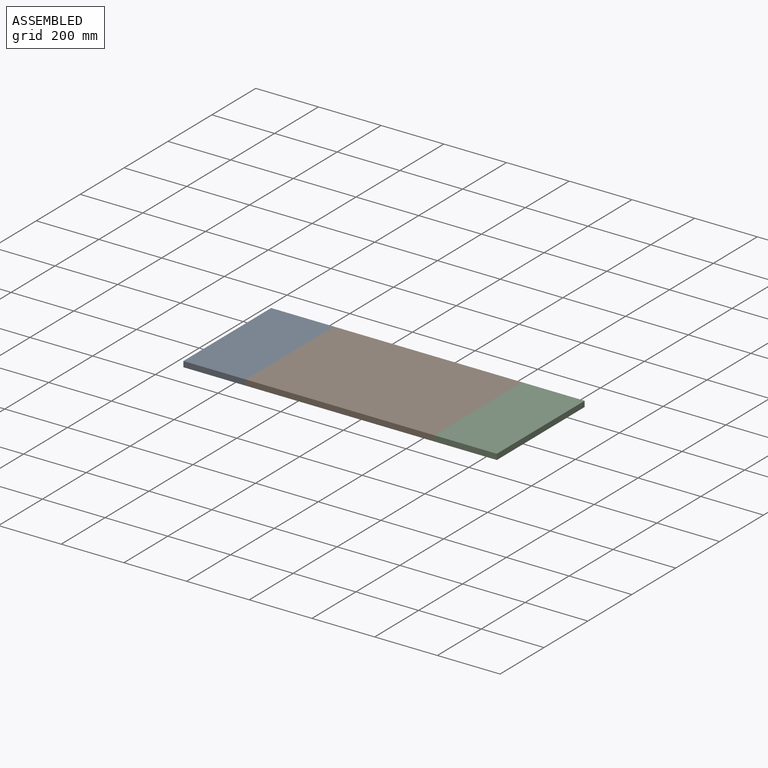
[diagram: assembled view]
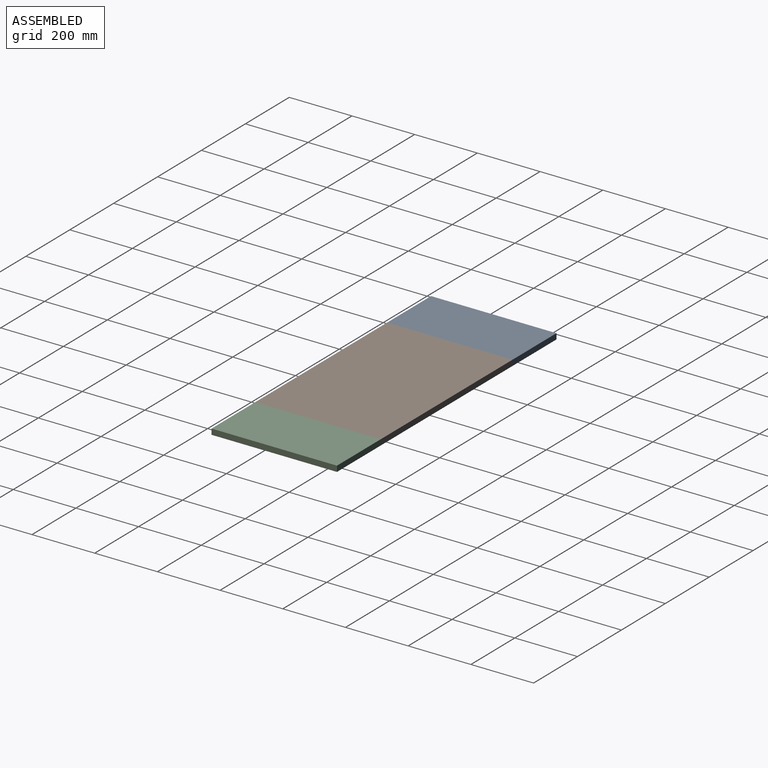
[diagram: assembled view, second angle]
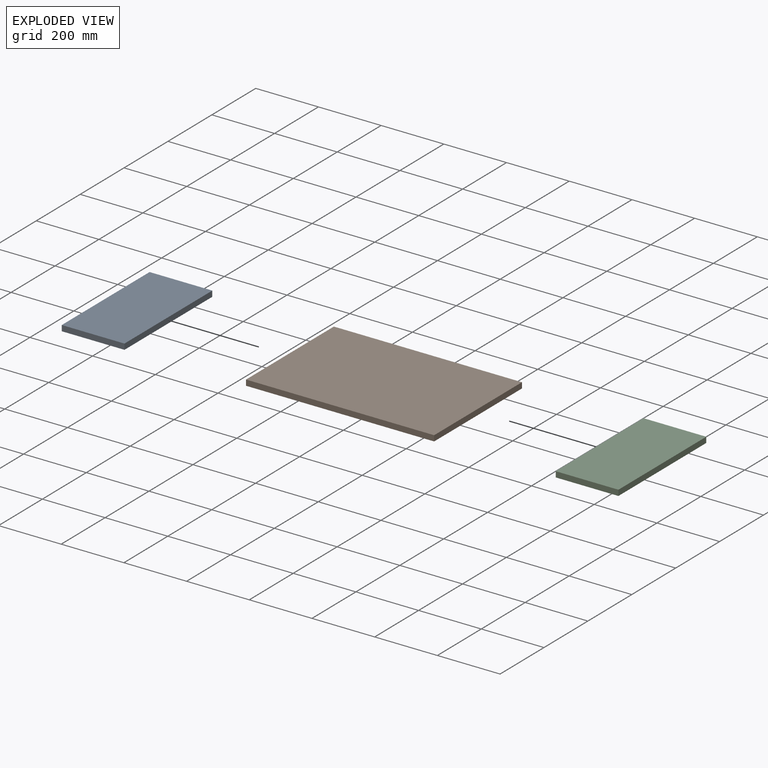
[diagram: exploded view]
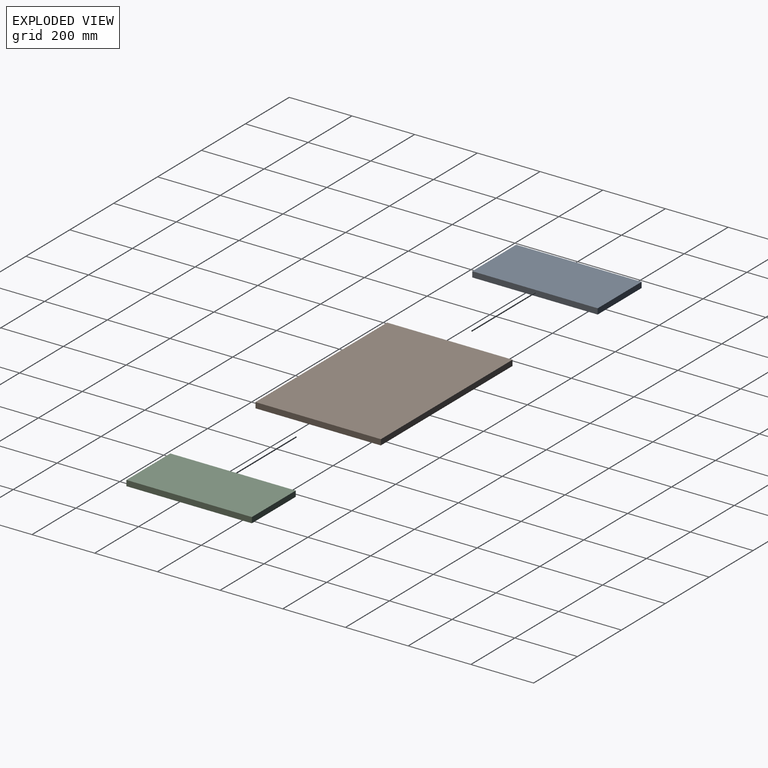
[diagram: exploded view, second angle]
ASSEMBLY  parts=3 mates=2
PART A: 6 faces, bbox 200x400x18 mm
  f0: plane 200x18mm, normal (0,1,0), area 3600mm2, adj f1,f3,f4,f5
  f1: plane 400x18mm, normal (-1,0,0), area 7200mm2, adj f0,f2,f4,f5
  f2: plane 200x18mm, normal (0,-1,0), area 3600mm2, adj f1,f3,f4,f5
  f3: plane 400x18mm, normal (1,0,0), area 7200mm2, adj f0,f2,f4,f5
  f4: plane 400x200mm, normal (0,0,1), area 80000mm2, adj f0,f1,f2,f3
  f5: plane 400x200mm, normal (0,0,-1), area 80000mm2, adj f0,f1,f2,f3
PART B: 6 faces, bbox 600x400x18 mm
  f0: plane 600x18mm, normal (0,1,0), area 10800mm2, adj f1,f3,f4,f5
  f1: plane 400x18mm, normal (-1,0,0), area 7200mm2, adj f0,f2,f4,f5
  f2: plane 600x18mm, normal (0,-1,0), area 10800mm2, adj f1,f3,f4,f5
  f3: plane 400x18mm, normal (1,0,0), area 7200mm2, adj f0,f2,f4,f5
  f4: plane 600x400mm, normal (0,0,1), area 240000mm2, adj f0,f1,f2,f3
  f5: plane 600x400mm, normal (0,0,-1), area 240000mm2, adj f0,f1,f2,f3
PART C: same geometry as A
PLACE A t=(-933.23,-605.77,-177.84)mm
PLACE B t=(-69.22,-121.38,-177.84)mm
PLACE C t=(-133.23,-605.77,-177.84)mm
MATE fastened B.f3 <-> C.f1  axis (1,0,0) through (254.12,-149.42,-168.84)mm
MATE fastened A.f3 <-> B.f1  axis (1,0,0) through (-345.88,-149.42,-168.84)mm
